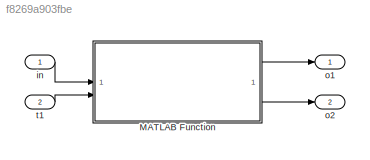
MODEL slx_f8269a903fbe
KIND model
CONFIG AbsTol = auto
CONFIG EnableMultiTasking = off
CONFIG FixedStep = auto
CONFIG MaxStep = auto
CONFIG MinStep = auto
CONFIG RelTol = 1e-3
CONFIG SampleTimeConstraint = Unconstrained
CONFIG SolverName = VariableStepAuto
CONFIG StartTime = 0.0
CONFIG StopTime = 10.0
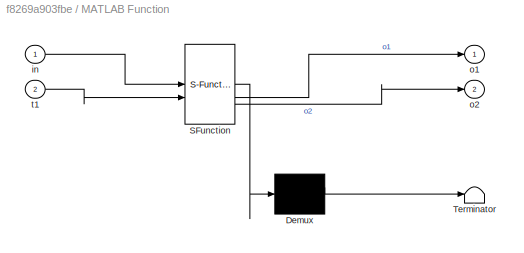
BLOCK [SubSystem] MATLAB Function
  ErrorFcn = Stateflow.Translate.translate
  PermitHierarchicalResolution = ExplicitOnly
  SFBlockType = MATLAB Function
  TreatAsAtomicUnit = on
BLOCK [Demux] MATLAB Function/ Demux 
  Outputs = 1
BLOCK [S-Function] MATLAB Function/ SFunction 
  EnableBusSupport = on
  FunctionName = sf_sfun
  PortCounts = [2 3]
  SFcnIsStateOwnerBlock = off
  SFunctionDeploymentMode = off
  Tag = Stateflow S-Function 2
BLOCK [Terminator] MATLAB Function/ Terminator 
BLOCK [Inport] MATLAB Function/in
BLOCK [Outport] MATLAB Function/o1
BLOCK [Outport] MATLAB Function/o2
  Port = 2
BLOCK [Inport] MATLAB Function/t1
  Port = 2
BLOCK [Inport] in
BLOCK [Outport] o1
BLOCK [Outport] o2
  Port = 2
BLOCK [Inport] t1
  Port = 2
LINE MATLAB Function:1 -> o1:1
LINE MATLAB Function:2 -> o2:1
LINE in:1 -> MATLAB Function:1
LINE t1:1 -> MATLAB Function:2
CHART MATLAB Function states=1 transitions=1
  STATE_LABEL 'eML_blk_kernel()'
  STATE_LABEL 'SCRIPT:\nfunction [o1, o2] = caseSplitTwo(in, t1)\n\n    o1 = -1;\n    o2 = -1;\n    x =100 * rand;\n    if 0  <= x && x < t1\n    \n        o1 = in;\n    \n    else\n    \n        o2 = in;\n    \n    end\nend'
CHART  states=0 transitions=0
